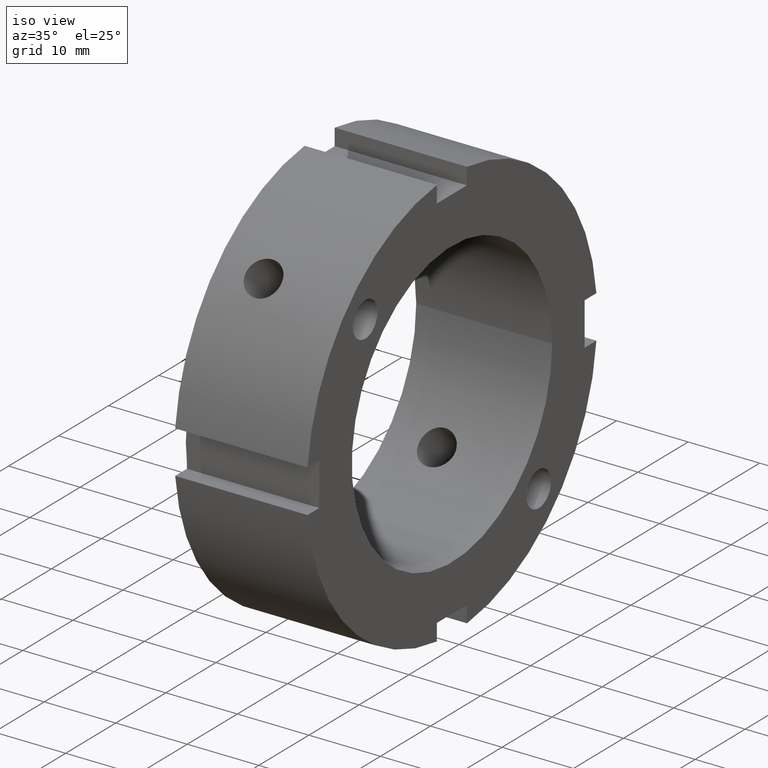
[diagram: clean part render]
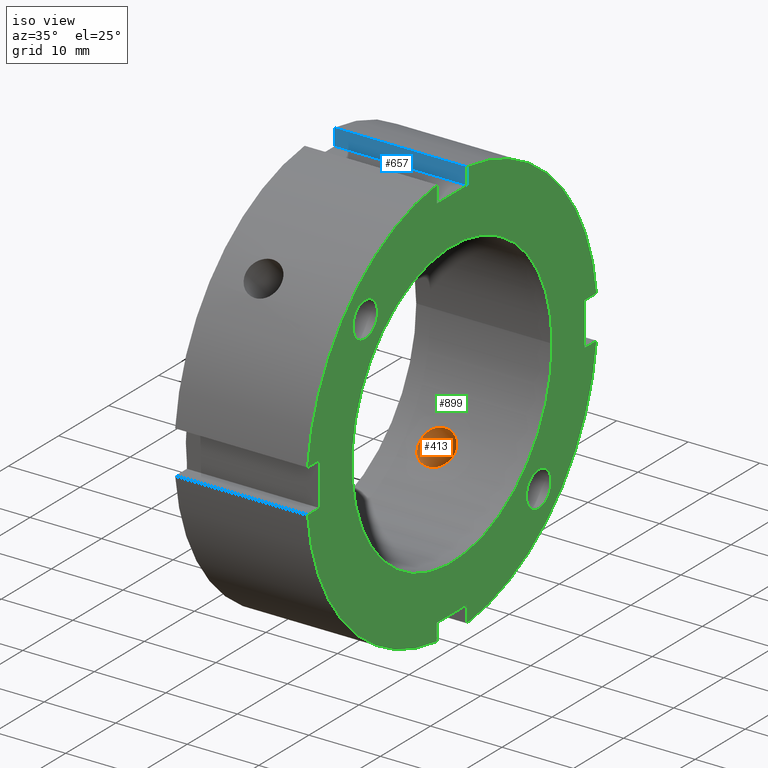
[diagram: same view with three faces highlighted in distinct colors, each labeled with its STEP entity id]
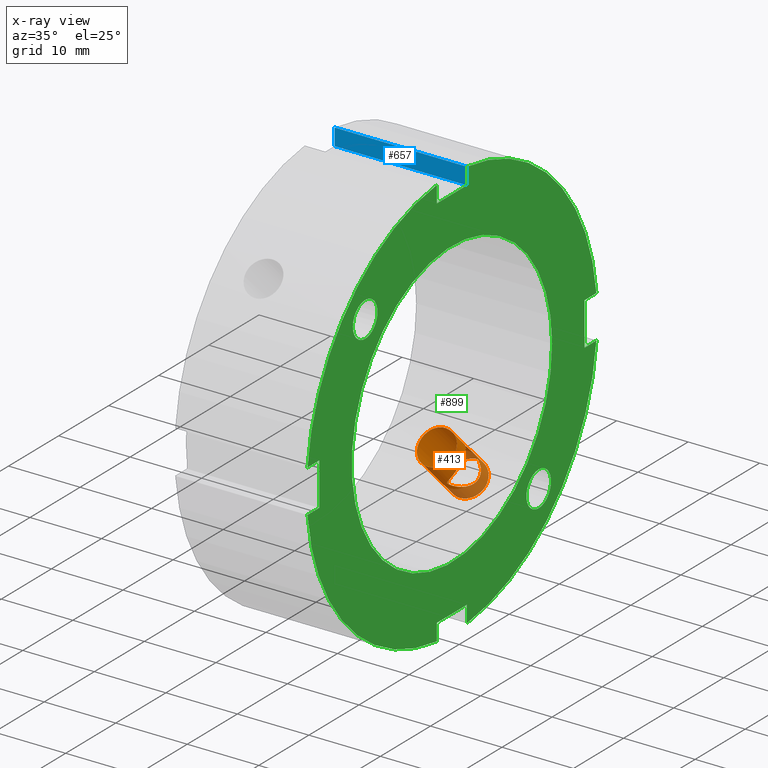
[diagram: x-ray of the same camera — body ghosted, the three highlighted faces saturated]
A machine part, iso view with three faces highlighted in distinct colors.
The next image is the same camera in x-ray (body ghosted, the three faces saturated) — at least one of them is partly hidden behind the body in this view.
Their STEP definitions:

[orange] entity #413 — the highlighted cylindrical surface (bore or boss wall) has radius 2.5 mm, axis along (0, -0.7071, 0.7071).
#246=CARTESIAN_POINT('',(7.453627325014675,19.062538160617546,-15.585694117523285));
#247=VERTEX_POINT('',#246);
#248=CARTESIAN_POINT('',(7.453627325014675,19.062538160617546,-15.585694117523285));
#249=CARTESIAN_POINT('',(7.453627325014675,18.989037782682146,-15.512193739587888));
#250=CARTESIAN_POINT('',(7.485845144440745,18.926482538040929,-15.457887984928773));
#251=CARTESIAN_POINT('',(7.564508256890302,18.804139021287774,-15.359448142248732));
#252=CARTESIAN_POINT('',(7.612937817032455,18.744830310537527,-15.316316804762993));
#253=CARTESIAN_POINT('',(7.772228880000012,18.559810529266841,-15.193572071144995));
#254=CARTESIAN_POINT('',(7.895505545516905,18.42979974611935,-15.12277390558603));
#255=CARTESIAN_POINT('',(8.283828024816526,18.000167116735742,-14.939988656686591));
#256=CARTESIAN_POINT('',(8.561851096446011,17.667265378399616,-14.865616139070418));
#257=CARTESIAN_POINT('',(8.987347846502063,17.045372880420793,-14.865616139070417));
#258=CARTESIAN_POINT('',(9.170926118717709,16.729454970245062,-14.916175167201374));
#259=CARTESIAN_POINT('',(9.363473477026183,16.271607828415004,-15.096259849093572));
#260=CARTESIAN_POINT('',(9.414345366287376,16.121397763737406,-15.173231310927465));
#261=CARTESIAN_POINT('',(9.482622830029023,15.838139994283742,-15.358229079255716));
#262=CARTESIAN_POINT('',(9.499999999999991,15.705104173030014,-15.466284062016566));
#263=CARTESIAN_POINT('',(9.499999999999991,15.466284062016577,-15.705104173030001));
#264=CARTESIAN_POINT('',(9.482622830029024,15.358229079255729,-15.838139994283729));
#265=CARTESIAN_POINT('',(9.414345366287385,15.173231310927481,-16.121397763737388));
#266=CARTESIAN_POINT('',(9.363473477026194,15.096259849093583,-16.271607828414986));
#267=CARTESIAN_POINT('',(9.170926118717729,14.916175167201384,-16.72945497024504));
#268=CARTESIAN_POINT('',(8.987347846502077,14.865616139070417,-17.045372880420764));
#269=CARTESIAN_POINT('',(8.561851096446043,14.865616139070417,-17.667265378399581));
#270=CARTESIAN_POINT('',(8.28382802481657,14.939988656686584,-18.000167116735692));
#271=CARTESIAN_POINT('',(7.89550554551697,15.122773905586017,-18.429799746119304));
#272=CARTESIAN_POINT('',(7.772228880000089,15.19357207114499,-18.559810529266805));
#273=CARTESIAN_POINT('',(7.612937817032539,15.316316804762991,-18.744830310537502));
#274=CARTESIAN_POINT('',(7.56450825689037,15.359448142248729,-18.80413902128775));
#275=CARTESIAN_POINT('',(7.485845144440817,15.457887984928769,-18.926482538040908));
#276=CARTESIAN_POINT('',(7.45362732501478,15.512193739587898,-18.989037782682132));
#277=CARTESIAN_POINT('',(7.453627325014773,15.65919449545869,-19.136038538552924));
#278=CARTESIAN_POINT('',(7.485845144440839,15.721749740099909,-19.190344293212046));
#279=CARTESIAN_POINT('',(7.564508256890386,15.844093256853071,-19.288784135892094));
#280=CARTESIAN_POINT('',(7.612937817032536,15.903401967603326,-19.33191547337784));
#281=CARTESIAN_POINT('',(7.772228880000083,16.088421748874019,-19.45466020699584));
#282=CARTESIAN_POINT('',(7.895505545516956,16.218432532021513,-19.525458372554809));
#283=CARTESIAN_POINT('',(8.283828024816557,16.648065161405125,-19.708243621454244));
#284=CARTESIAN_POINT('',(8.561851096446045,16.980966899741233,-19.782616139070399));
#285=CARTESIAN_POINT('',(8.987347846502082,17.602859397720056,-19.782616139070399));
#286=CARTESIAN_POINT('',(9.170926118717723,17.918777307895791,-19.732057110939447));
#287=CARTESIAN_POINT('',(9.36347347702619,18.376624449725846,-19.551972429047247));
#288=CARTESIAN_POINT('',(9.414345366287385,18.526834514403443,-19.475000967213351));
#289=CARTESIAN_POINT('',(9.482622830029024,18.810092283857102,-19.290003198885103));
#290=CARTESIAN_POINT('',(9.499999999999991,18.94312810511083,-19.181948216124262));
#291=CARTESIAN_POINT('',(9.499999999999991,19.181948216124265,-18.94312810511083));
#292=CARTESIAN_POINT('',(9.482622830029024,19.29000319888511,-18.810092283857095));
#293=CARTESIAN_POINT('',(9.414345366287382,19.475000967213361,-18.526834514403436));
#294=CARTESIAN_POINT('',(9.363473477026187,19.551972429047257,-18.376624449725835));
#295=CARTESIAN_POINT('',(9.170926118717716,19.732057110939458,-17.91877730789578));
#296=CARTESIAN_POINT('',(8.987347846502068,19.782616139070413,-17.602859397720046));
#297=CARTESIAN_POINT('',(8.561851096446016,19.782616139070413,-16.980966899741219));
#298=CARTESIAN_POINT('',(8.283828024816529,19.708243621454248,-16.6480651614051));
#299=CARTESIAN_POINT('',(7.895505545516908,19.525458372554809,-16.218432532021488));
#300=CARTESIAN_POINT('',(7.772228880000016,19.45466020699584,-16.088421748873994));
#301=CARTESIAN_POINT('',(7.612937817032458,19.33191547337784,-15.903401967603308));
#302=CARTESIAN_POINT('',(7.564508256890282,19.288784135892104,-15.844093256853068));
#303=CARTESIAN_POINT('',(7.485845144440726,19.190344293212064,-15.721749740099909));
#304=CARTESIAN_POINT('',(7.453627325014675,19.136038538552945,-15.659194495458683));
#305=CARTESIAN_POINT('',(7.453627325014675,19.062538160617546,-15.585694117523285));
#306=B_SPLINE_CURVE_WITH_KNOTS('',3,(#248,#249,#250,#251,#252,#253,#254,#255,#256,#257,#258,#259,#260,#261,#262,#263,#264,#265,#266,#267,#268,#269,#270,#271,#272,#273,#274,#275,#276,#277,#278,#279,#280,#281,#282,#283,#284,#285,#286,#287,#288,#289,#290,#291,#292,#293,#294,#295,#296,#297,#298,#299,#300,#301,#302,#303,#304,#305),.UNSPECIFIED.,.T.,.U.,(4,2,2,2,2,2,2,2,2,2,2,2,2,2,2,2,2,2,2,2,2,2,2,2,2,2,2,2,4),(0.0,0.031183569394737,0.062367138789473,0.124734277578946,0.249468555157892,0.350791347146687,0.401452743141085,0.452114139135483,0.50277553512988,0.553436931124277,0.654759723113071,0.779494000692012,0.841861139481482,0.873044708876218,0.904228278270953,0.935411847665689,0.966595417060425,1.028962555849897,1.153696833428841,1.255019625417635,1.305681021412032,1.356342417406429,1.407003813400826,1.457665209395224,1.558988001384019,1.683722278962966,1.746089417752439,1.777272987147176,1.808456556541913),.UNSPECIFIED.);
#307=EDGE_CURVE('',#247,#247,#306,.T.);
#323=CARTESIAN_POINT('',(6.999999999999991,59.232592379533749,-59.232592379533756));
#324=DIRECTION('',(0.0,-0.707106781186547,0.707106781186548));
#325=DIRECTION('',(1.0,0.0,0.0));
#326=AXIS2_PLACEMENT_3D('',#323,#324,#325);
#327=CYLINDRICAL_SURFACE('',#326,2.5);
#328=CARTESIAN_POINT('',(6.999999999999991,18.661990754847984,-22.197524660780722));
#329=VERTEX_POINT('',#328);
#330=CARTESIAN_POINT('',(6.999999999999992,18.661990754847984,-22.197524660780729));
#331=CARTESIAN_POINT('',(7.314073178566675,18.661990754847984,-22.197524660780729));
#332=CARTESIAN_POINT('',(7.648973959713155,18.710390970576544,-22.157112925752671));
#333=CARTESIAN_POINT('',(8.264875953060376,18.905248724555662,-21.9910880605389));
#334=CARTESIAN_POINT('',(8.545890463955892,19.051490941357073,-21.865271681287403));
#335=CARTESIAN_POINT('',(8.989643025883485,19.384434288694262,-21.570654137208788));
#336=CARTESIAN_POINT('',(9.182017827229137,19.593338020832569,-21.38214307726825));
#337=CARTESIAN_POINT('',(9.437200620125466,20.04322542378636,-20.961012666023969));
#338=CARTESIAN_POINT('',(9.499999999999991,20.2840137965377,-20.728179512282061));
#339=CARTESIAN_POINT('',(9.499999999999991,20.728179512282058,-20.284013796537703));
#340=CARTESIAN_POINT('',(9.43720062012547,20.961012666023962,-20.043225423786364));
#341=CARTESIAN_POINT('',(9.18201782722914,21.382143077268239,-19.593338020832572));
#342=CARTESIAN_POINT('',(8.989643025883485,21.570654137208784,-19.384434288694266));
#343=CARTESIAN_POINT('',(8.545890463955892,21.865271681287396,-19.051490941357073));
#344=CARTESIAN_POINT('',(8.264875953060376,21.991088060538893,-18.905248724555669));
#345=CARTESIAN_POINT('',(7.648973959713155,22.15711292575266,-18.710390970576551));
#346=CARTESIAN_POINT('',(7.314073178566673,22.197524660780719,-18.661990754847992));
#347=CARTESIAN_POINT('',(6.685926821433307,22.197524660780719,-18.661990754847992));
#348=CARTESIAN_POINT('',(6.351026040286827,22.15711292575266,-18.710390970576551));
#349=CARTESIAN_POINT('',(5.735124046939606,21.991088060538893,-18.905248724555669));
#350=CARTESIAN_POINT('',(5.454109536044088,21.865271681287403,-19.051490941357077));
#351=CARTESIAN_POINT('',(5.010356974116497,21.570654137208784,-19.384434288694266));
#352=CARTESIAN_POINT('',(4.817982172770842,21.382143077268235,-19.593338020832572));
#353=CARTESIAN_POINT('',(4.562799379874513,20.961012666023958,-20.043225423786364));
#354=CARTESIAN_POINT('',(4.499999999999991,20.728179512282058,-20.284013796537703));
#355=CARTESIAN_POINT('',(4.499999999999991,20.2840137965377,-20.728179512282061));
#356=CARTESIAN_POINT('',(4.562799379874514,20.04322542378636,-20.961012666023962));
#357=CARTESIAN_POINT('',(4.817982172770844,19.593338020832569,-21.382143077268239));
#358=CARTESIAN_POINT('',(5.010356974116497,19.384434288694262,-21.570654137208788));
#359=CARTESIAN_POINT('',(5.454109536044088,19.051490941357073,-21.865271681287403));
#360=CARTESIAN_POINT('',(5.735124046939606,18.905248724555662,-21.9910880605389));
#361=CARTESIAN_POINT('',(6.351026040286827,18.710390970576544,-22.157112925752671));
#362=CARTESIAN_POINT('',(6.685926821433307,18.661990754847984,-22.197524660780729));
#363=CARTESIAN_POINT('',(6.999999999999989,18.661990754847984,-22.197524660780729));
#364=B_SPLINE_CURVE_WITH_KNOTS('',3,(#330,#331,#332,#333,#334,#335,#336,#337,#338,#339,#340,#341,#342,#343,#344,#345,#346,#347,#348,#349,#350,#351,#352,#353,#354,#355,#356,#357,#358,#359,#360,#361,#362,#363),.UNSPECIFIED.,.T.,.U.,(4,2,2,2,2,2,2,2,2,2,2,2,2,2,2,2,4),(0.0,0.094221953570005,0.18844390714001,0.282665684012033,0.376887460884057,0.47110923775608,0.565331014628104,0.659552968198109,0.753774921768114,0.847996875338118,0.942218828908123,1.036440605780147,1.13066238265217,1.224884159524194,1.319105936396217,1.413327889966222,1.507549843536227),.UNSPECIFIED.);
#365=EDGE_CURVE('',#329,#329,#364,.T.);
#366=ORIENTED_EDGE('',*,*,#365,.F.);
#367=EDGE_LOOP('',(#366));
#368=FACE_OUTER_BOUND('',#367,.T.);
#369=ORIENTED_EDGE('',*,*,#307,.T.);
#370=EDGE_LOOP('',(#369));
#371=FACE_BOUND('',#370,.T.);
#372=CARTESIAN_POINT('',(6.999999999999991,12.263448247435909,-15.798982153368648));
#373=VERTEX_POINT('',#372);
#374=CARTESIAN_POINT('',(6.999999999999991,12.263448247435909,-15.79898215336865));
#375=CARTESIAN_POINT('',(6.685739951787246,12.263448247435909,-15.79898215336865));
#376=CARTESIAN_POINT('',(6.350759938549278,12.313729270633617,-15.760348281083491));
#377=CARTESIAN_POINT('',(5.734910295306916,12.515189491950379,-15.600850565277671));
#378=CARTESIAN_POINT('',(5.454012313675733,12.666047294780199,-15.479690541518636));
#379=CARTESIAN_POINT('',(5.010455633154542,13.007520452827418,-15.193879826291589));
#380=CARTESIAN_POINT('',(4.818108531835079,13.220943998802557,-15.010052497889522));
#381=CARTESIAN_POINT('',(4.562871662070243,13.677282279292415,-14.59544400347659));
#382=CARTESIAN_POINT('',(4.499999999999991,13.919922068990328,-14.364349178471574));
#383=CARTESIAN_POINT('',(4.499999999999991,14.364349178471571,-13.91992206899033));
#384=CARTESIAN_POINT('',(4.562871662070243,14.595444003476585,-13.677282279292415));
#385=CARTESIAN_POINT('',(4.818108531835076,15.010052497889516,-13.220943998802557));
#386=CARTESIAN_POINT('',(5.010455633154541,15.193879826291587,-13.007520452827418));
#387=CARTESIAN_POINT('',(5.454012313675733,15.479690541518634,-12.666047294780203));
#388=CARTESIAN_POINT('',(5.734910295306914,15.600850565277671,-12.51518949195038));
#389=CARTESIAN_POINT('',(6.350759938549276,15.760348281083495,-12.313729270633619));
#390=CARTESIAN_POINT('',(6.685739951787246,15.798982153368645,-12.263448247435917));
#391=CARTESIAN_POINT('',(7.314260048212735,15.798982153368646,-12.263448247435917));
#392=CARTESIAN_POINT('',(7.649240061450705,15.760348281083491,-12.313729270633619));
#393=CARTESIAN_POINT('',(8.265089704693066,15.600850565277671,-12.51518949195038));
#394=CARTESIAN_POINT('',(8.545987686324247,15.479690541518636,-12.666047294780203));
#395=CARTESIAN_POINT('',(8.989544366845442,15.193879826291585,-13.007520452827418));
#396=CARTESIAN_POINT('',(9.181891468164903,15.010052497889518,-13.220943998802559));
#397=CARTESIAN_POINT('',(9.437128337929737,14.595444003476587,-13.677282279292417));
#398=CARTESIAN_POINT('',(9.499999999999991,14.364349178471571,-13.919922068990328));
#399=CARTESIAN_POINT('',(9.499999999999991,13.919922068990328,-14.364349178471571));
#400=CARTESIAN_POINT('',(9.437128337929737,13.677282279292415,-14.595444003476585));
#401=CARTESIAN_POINT('',(9.181891468164903,13.220943998802557,-15.010052497889516));
#402=CARTESIAN_POINT('',(8.989544366845442,13.007520452827418,-15.193879826291589));
#403=CARTESIAN_POINT('',(8.545987686324249,12.666047294780201,-15.479690541518636));
#404=CARTESIAN_POINT('',(8.265089704693068,12.51518949195038,-15.600850565277671));
#405=CARTESIAN_POINT('',(7.649240061450707,12.313729270633619,-15.760348281083495));
#406=CARTESIAN_POINT('',(7.314260048212735,12.26344824743591,-15.798982153368648));
#407=CARTESIAN_POINT('',(6.999999999999991,12.26344824743591,-15.798982153368648));
#408=B_SPLINE_CURVE_WITH_KNOTS('',3,(#374,#375,#376,#377,#378,#379,#380,#381,#382,#383,#384,#385,#386,#387,#388,#389,#390,#391,#392,#393,#394,#395,#396,#397,#398,#399,#400,#401,#402,#403,#404,#405,#406,#407),.UNSPECIFIED.,.T.,.U.,(4,2,2,2,2,2,2,2,2,2,2,2,2,2,2,2,4),(0.0,0.094278014463823,0.188556028927647,0.282833255784844,0.377110482642041,0.471387709499238,0.565664936356435,0.659942950820258,0.754220965284081,0.848498979747905,0.942776994211728,1.037054221068925,1.131331447926122,1.225608674783319,1.319885901640516,1.41416391610434,1.508441930568163),.UNSPECIFIED.);
#409=EDGE_CURVE('',#373,#373,#408,.T.);
#410=ORIENTED_EDGE('',*,*,#409,.F.);
#411=EDGE_LOOP('',(#410));
#412=FACE_BOUND('',#411,.T.);
#413=ADVANCED_FACE('',(#368,#371,#412),#327,.F.);

[blue] entity #657 — the highlighted planar face has unit normal (0, 1, 0).
#618=CARTESIAN_POINT('',(18.999999999999993,3.000000000000001,26.500000000000004));
#619=DIRECTION('',(0.0,1.0,0.0));
#620=DIRECTION('',(-1.0,0.0,0.0));
#621=AXIS2_PLACEMENT_3D('',#618,#619,#620);
#622=PLANE('',#621);
#623=CARTESIAN_POINT('',(0.499999999999994,3.000000000000001,26.500000000000004));
#624=VERTEX_POINT('',#623);
#625=CARTESIAN_POINT('',(0.499999999999994,3.000000000000001,28.844410203711917));
#626=VERTEX_POINT('',#625);
#627=CARTESIAN_POINT('',(0.499999999999994,3.000000000000004,26.500000000000004));
#628=DIRECTION('',(0.0,0.0,1.0));
#629=VECTOR('',#628,2.344410203711913);
#630=LINE('',#627,#629);
#631=EDGE_CURVE('',#624,#626,#630,.T.);
#632=ORIENTED_EDGE('',*,*,#631,.F.);
#633=CARTESIAN_POINT('',(18.999999999999993,3.000000000000001,26.500000000000004));
#634=VERTEX_POINT('',#633);
#635=CARTESIAN_POINT('',(18.999999999999993,3.000000000000001,26.500000000000004));
#636=DIRECTION('',(-1.0,0.0,0.0));
#637=VECTOR('',#636,18.5);
#638=LINE('',#635,#637);
#639=EDGE_CURVE('',#634,#624,#638,.T.);
#640=ORIENTED_EDGE('',*,*,#639,.F.);
#641=CARTESIAN_POINT('',(18.999999999999993,3.000000000000001,28.844410203711917));
#642=VERTEX_POINT('',#641);
#643=CARTESIAN_POINT('',(18.999999999999993,3.000000000000004,28.844410203711917));
#644=DIRECTION('',(0.0,0.0,-1.0));
#645=VECTOR('',#644,2.344410203711913);
#646=LINE('',#643,#645);
#647=EDGE_CURVE('',#642,#634,#646,.T.);
#648=ORIENTED_EDGE('',*,*,#647,.F.);
#649=CARTESIAN_POINT('',(0.499999999999993,3.000000000000002,28.844410203711917));
#650=DIRECTION('',(1.0,0.0,0.0));
#651=VECTOR('',#650,18.5);
#652=LINE('',#649,#651);
#653=EDGE_CURVE('',#626,#642,#652,.T.);
#654=ORIENTED_EDGE('',*,*,#653,.F.);
#655=EDGE_LOOP('',(#632,#640,#648,#654));
#656=FACE_OUTER_BOUND('',#655,.T.);
#657=ADVANCED_FACE('',(#656),#622,.F.);

[green] entity #899 — the highlighted planar face has unit normal (1, 0, 0).
#73=CARTESIAN_POINT('',(18.999999999999993,-19.782616139070406,17.324116139070426));
#74=VERTEX_POINT('',#73);
#75=CARTESIAN_POINT('',(18.999999999999993,-17.324116139070405,17.324116139070426));
#76=DIRECTION('',(-1.0,0.0,0.0));
#77=DIRECTION('',(0.0,-1.0,0.0));
#78=AXIS2_PLACEMENT_3D('',#75,#76,#77);
#79=CIRCLE('',#78,2.4585);
#80=EDGE_CURVE('',#74,#74,#79,.T.);
#311=CARTESIAN_POINT('',(18.999999999999993,17.324116139070419,-19.782616139070409));
#312=VERTEX_POINT('',#311);
#313=CARTESIAN_POINT('',(18.999999999999993,17.324116139070419,-17.324116139070412));
#314=DIRECTION('',(-1.0,0.0,0.0));
#315=DIRECTION('',(0.0,0.0,-1.0));
#316=AXIS2_PLACEMENT_3D('',#313,#314,#315);
#317=CIRCLE('',#316,2.4585);
#318=EDGE_CURVE('',#312,#312,#317,.T.);
#429=CARTESIAN_POINT('',(18.999999999999993,-3.000000000000004,-26.500000000000004));
#430=VERTEX_POINT('',#429);
#437=CARTESIAN_POINT('',(18.999999999999993,-3.000000000000004,-28.844410203711917));
#438=VERTEX_POINT('',#437);
#439=CARTESIAN_POINT('',(18.999999999999993,-3.000000000000003,-28.844410203711917));
#440=DIRECTION('',(0.0,0.0,1.0));
#441=VECTOR('',#440,2.344410203711913);
#442=LINE('',#439,#441);
#443=EDGE_CURVE('',#438,#430,#442,.T.);
#469=CARTESIAN_POINT('',(18.999999999999993,2.999999999999994,-28.844410203711917));
#470=VERTEX_POINT('',#469);
#477=CARTESIAN_POINT('',(18.999999999999993,2.999999999999994,-26.500000000000004));
#478=VERTEX_POINT('',#477);
#479=CARTESIAN_POINT('',(18.999999999999993,2.999999999999994,-26.500000000000004));
#480=DIRECTION('',(0.0,0.0,-1.0));
#481=VECTOR('',#480,2.344410203711913);
#482=LINE('',#479,#481);
#483=EDGE_CURVE('',#478,#470,#482,.T.);
#506=CARTESIAN_POINT('',(18.999999999999993,-3.000000000000004,-26.5));
#507=DIRECTION('',(0.0,1.0,0.0));
#508=VECTOR('',#507,5.999999999999998);
#509=LINE('',#506,#508);
#510=EDGE_CURVE('',#430,#478,#509,.T.);
#531=CARTESIAN_POINT('',(18.999999999999993,-26.500000000000004,3.000000000000003));
#532=VERTEX_POINT('',#531);
#539=CARTESIAN_POINT('',(18.999999999999993,-28.844410203711917,3.000000000000003));
#540=VERTEX_POINT('',#539);
#541=CARTESIAN_POINT('',(18.999999999999993,-28.844410203711917,3.000000000000003));
#542=DIRECTION('',(0.0,1.0,0.0));
#543=VECTOR('',#542,2.344410203711913);
#544=LINE('',#541,#543);
#545=EDGE_CURVE('',#540,#532,#544,.T.);
#571=CARTESIAN_POINT('',(18.999999999999993,-28.844410203711917,-2.999999999999996));
#572=VERTEX_POINT('',#571);
#579=CARTESIAN_POINT('',(18.999999999999993,-26.500000000000004,-2.999999999999996));
#580=VERTEX_POINT('',#579);
#581=CARTESIAN_POINT('',(18.999999999999993,-26.500000000000004,-2.999999999999996));
#582=DIRECTION('',(0.0,-1.0,0.0));
#583=VECTOR('',#582,2.344410203711913);
#584=LINE('',#581,#583);
#585=EDGE_CURVE('',#580,#572,#584,.T.);
#608=CARTESIAN_POINT('',(18.999999999999993,-26.500000000000004,3.000000000000003));
#609=DIRECTION('',(0.0,0.0,-1.0));
#610=VECTOR('',#609,5.999999999999998);
#611=LINE('',#608,#610);
#612=EDGE_CURVE('',#532,#580,#611,.T.);
#633=CARTESIAN_POINT('',(18.999999999999993,3.000000000000001,26.500000000000004));
#634=VERTEX_POINT('',#633);
#641=CARTESIAN_POINT('',(18.999999999999993,3.000000000000001,28.844410203711917));
#642=VERTEX_POINT('',#641);
#643=CARTESIAN_POINT('',(18.999999999999993,3.000000000000004,28.844410203711917));
#644=DIRECTION('',(0.0,0.0,-1.0));
#645=VECTOR('',#644,2.344410203711913);
#646=LINE('',#643,#645);
#647=EDGE_CURVE('',#642,#634,#646,.T.);
#673=CARTESIAN_POINT('',(18.999999999999993,-2.999999999999998,28.844410203711917));
#674=VERTEX_POINT('',#673);
#681=CARTESIAN_POINT('',(18.999999999999993,-2.999999999999998,26.500000000000004));
#682=VERTEX_POINT('',#681);
#683=CARTESIAN_POINT('',(18.999999999999993,-2.999999999999997,26.500000000000004));
#684=DIRECTION('',(0.0,0.0,1.0));
#685=VECTOR('',#684,2.344410203711913);
#686=LINE('',#683,#685);
#687=EDGE_CURVE('',#682,#674,#686,.T.);
#710=CARTESIAN_POINT('',(18.999999999999993,3.0,26.500000000000004));
#711=DIRECTION('',(0.0,-1.0,0.0));
#712=VECTOR('',#711,5.999999999999998);
#713=LINE('',#710,#712);
#714=EDGE_CURVE('',#634,#682,#713,.T.);
#726=CARTESIAN_POINT('',(18.999999999999993,28.844410203711917,2.999999999999999));
#727=VERTEX_POINT('',#726);
#728=CARTESIAN_POINT('',(18.999999999999993,0.0,0.0));
#729=DIRECTION('',(1.0,0.0,0.0));
#730=DIRECTION('',(0.0,1.0,0.0));
#731=AXIS2_PLACEMENT_3D('',#728,#729,#730);
#732=CIRCLE('',#731,29.000000000000004);
#733=EDGE_CURVE('',#727,#642,#732,.T.);
#759=CARTESIAN_POINT('',(18.999999999999993,0.0,0.0));
#760=DIRECTION('',(1.0,0.0,0.0));
#761=DIRECTION('',(0.0,1.0,0.0));
#762=AXIS2_PLACEMENT_3D('',#759,#760,#761);
#763=CIRCLE('',#762,29.000000000000004);
#764=EDGE_CURVE('',#674,#540,#763,.T.);
#795=CARTESIAN_POINT('',(18.999999999999993,28.844410203711917,-2.999999999999999));
#796=VERTEX_POINT('',#795);
#803=CARTESIAN_POINT('',(18.999999999999993,0.0,0.0));
#804=DIRECTION('',(1.0,0.0,0.0));
#805=DIRECTION('',(0.0,1.0,0.0));
#806=AXIS2_PLACEMENT_3D('',#803,#804,#805);
#807=CIRCLE('',#806,29.000000000000004);
#808=EDGE_CURVE('',#470,#796,#807,.T.);
#822=CARTESIAN_POINT('',(18.999999999999993,0.0,0.0));
#823=DIRECTION('',(1.0,0.0,0.0));
#824=DIRECTION('',(0.0,1.0,0.0));
#825=AXIS2_PLACEMENT_3D('',#822,#823,#824);
#826=CIRCLE('',#825,29.000000000000004);
#827=EDGE_CURVE('',#572,#438,#826,.T.);
#840=CARTESIAN_POINT('',(18.999999999999993,24.5,0.0));
#841=DIRECTION('',(1.0,0.0,0.0));
#842=DIRECTION('',(0.0,0.0,-1.0));
#843=AXIS2_PLACEMENT_3D('',#840,#841,#842);
#844=PLANE('',#843);
#845=ORIENTED_EDGE('',*,*,#443,.T.);
#846=ORIENTED_EDGE('',*,*,#510,.T.);
#847=ORIENTED_EDGE('',*,*,#483,.T.);
#848=ORIENTED_EDGE('',*,*,#808,.T.);
#849=CARTESIAN_POINT('',(18.999999999999993,26.500000000000004,-2.999999999999999));
#850=VERTEX_POINT('',#849);
#851=CARTESIAN_POINT('',(18.999999999999993,28.844410203711917,-2.999999999999999));
#852=DIRECTION('',(0.0,-1.0,0.0));
#853=VECTOR('',#852,2.344410203711913);
#854=LINE('',#851,#853);
#855=EDGE_CURVE('',#796,#850,#854,.T.);
#856=ORIENTED_EDGE('',*,*,#855,.T.);
#857=CARTESIAN_POINT('',(18.999999999999993,26.500000000000004,2.999999999999999));
#858=VERTEX_POINT('',#857);
#859=CARTESIAN_POINT('',(18.999999999999993,26.500000000000004,-3.0));
#860=DIRECTION('',(0.0,0.0,1.0));
#861=VECTOR('',#860,5.999999999999998);
#862=LINE('',#859,#861);
#863=EDGE_CURVE('',#850,#858,#862,.T.);
#864=ORIENTED_EDGE('',*,*,#863,.T.);
#865=CARTESIAN_POINT('',(18.999999999999993,26.500000000000004,2.999999999999999));
#866=DIRECTION('',(0.0,1.0,0.0));
#867=VECTOR('',#866,2.344410203711913);
#868=LINE('',#865,#867);
#869=EDGE_CURVE('',#858,#727,#868,.T.);
#870=ORIENTED_EDGE('',*,*,#869,.T.);
#871=ORIENTED_EDGE('',*,*,#733,.T.);
#872=ORIENTED_EDGE('',*,*,#647,.T.);
#873=ORIENTED_EDGE('',*,*,#714,.T.);
#874=ORIENTED_EDGE('',*,*,#687,.T.);
#875=ORIENTED_EDGE('',*,*,#764,.T.);
#876=ORIENTED_EDGE('',*,*,#545,.T.);
#877=ORIENTED_EDGE('',*,*,#612,.T.);
#878=ORIENTED_EDGE('',*,*,#585,.T.);
#879=ORIENTED_EDGE('',*,*,#827,.T.);
#880=EDGE_LOOP('',(#845,#846,#847,#848,#856,#864,#870,#871,#872,#873,#874,#875,#876,#877,#878,#879));
#881=FACE_OUTER_BOUND('',#880,.T.);
#882=ORIENTED_EDGE('',*,*,#80,.T.);
#883=EDGE_LOOP('',(#882));
#884=FACE_BOUND('',#883,.T.);
#885=ORIENTED_EDGE('',*,*,#318,.T.);
#886=EDGE_LOOP('',(#885));
#887=FACE_BOUND('',#886,.T.);
#888=CARTESIAN_POINT('',(18.999999999999993,20.0,0.0));
#889=VERTEX_POINT('',#888);
#890=CARTESIAN_POINT('',(18.999999999999993,0.0,0.0));
#891=DIRECTION('',(1.0,0.0,0.0));
#892=DIRECTION('',(0.0,1.0,0.0));
#893=AXIS2_PLACEMENT_3D('',#890,#891,#892);
#894=CIRCLE('',#893,20.0);
#895=EDGE_CURVE('',#889,#889,#894,.T.);
#896=ORIENTED_EDGE('',*,*,#895,.F.);
#897=EDGE_LOOP('',(#896));
#898=FACE_BOUND('',#897,.T.);
#899=ADVANCED_FACE('',(#881,#884,#887,#898),#844,.T.);